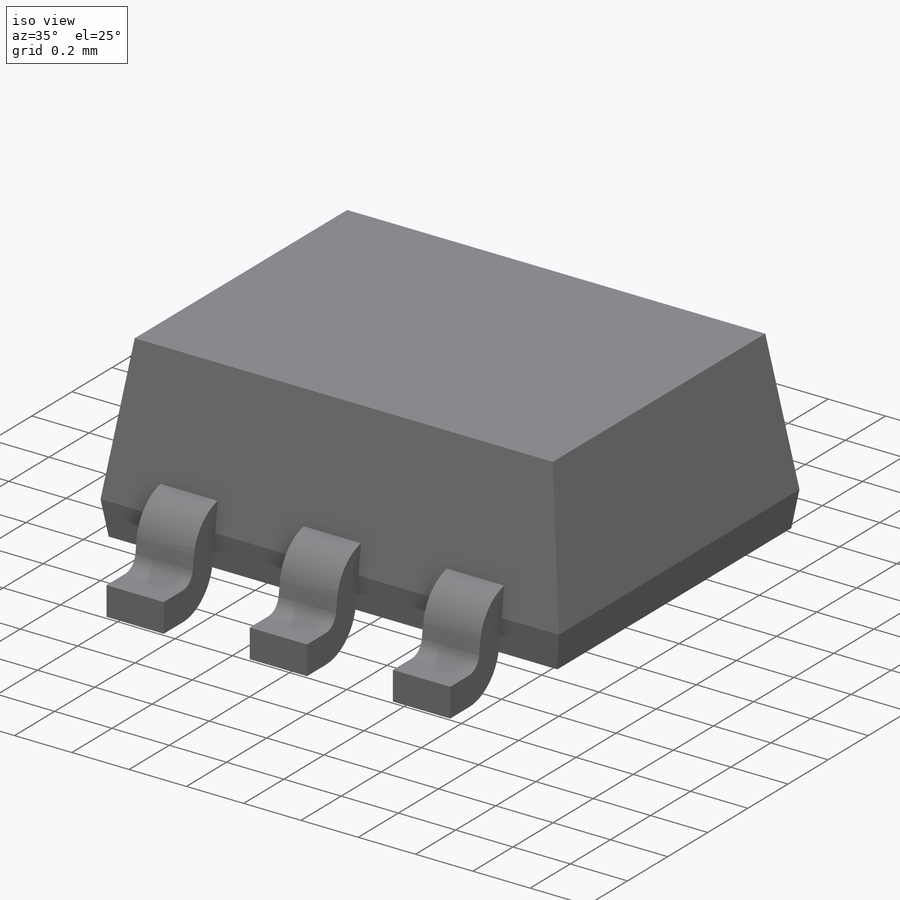
[diagram: iso view]
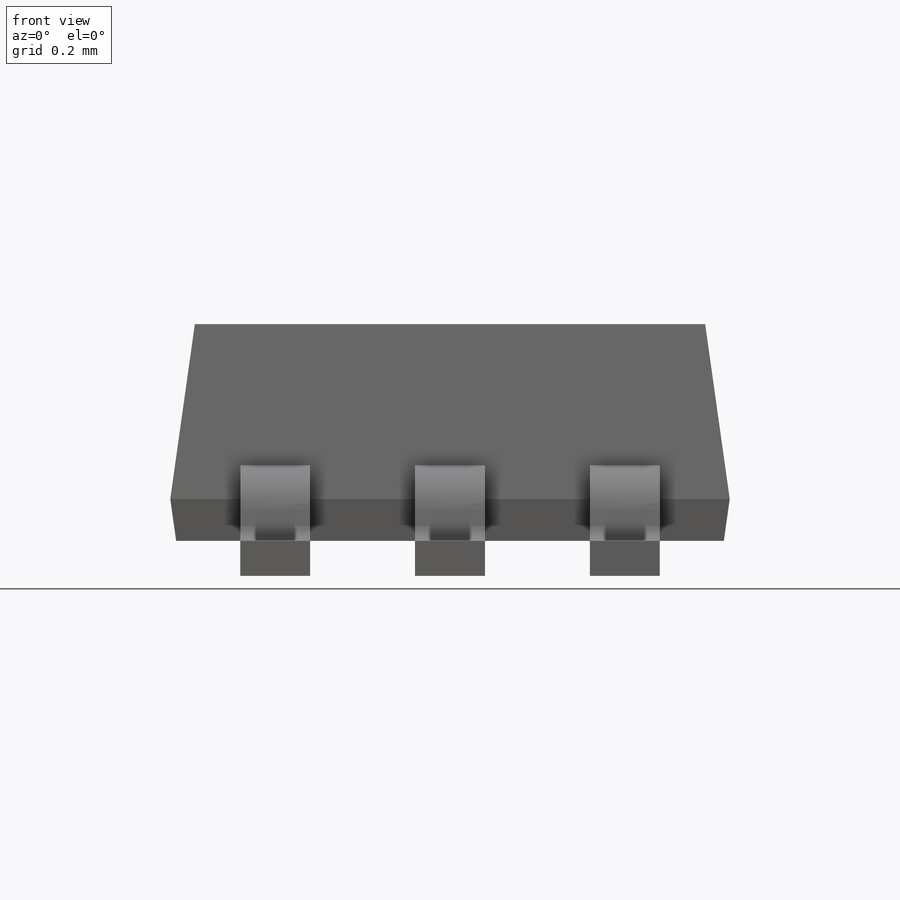
[diagram: front view]
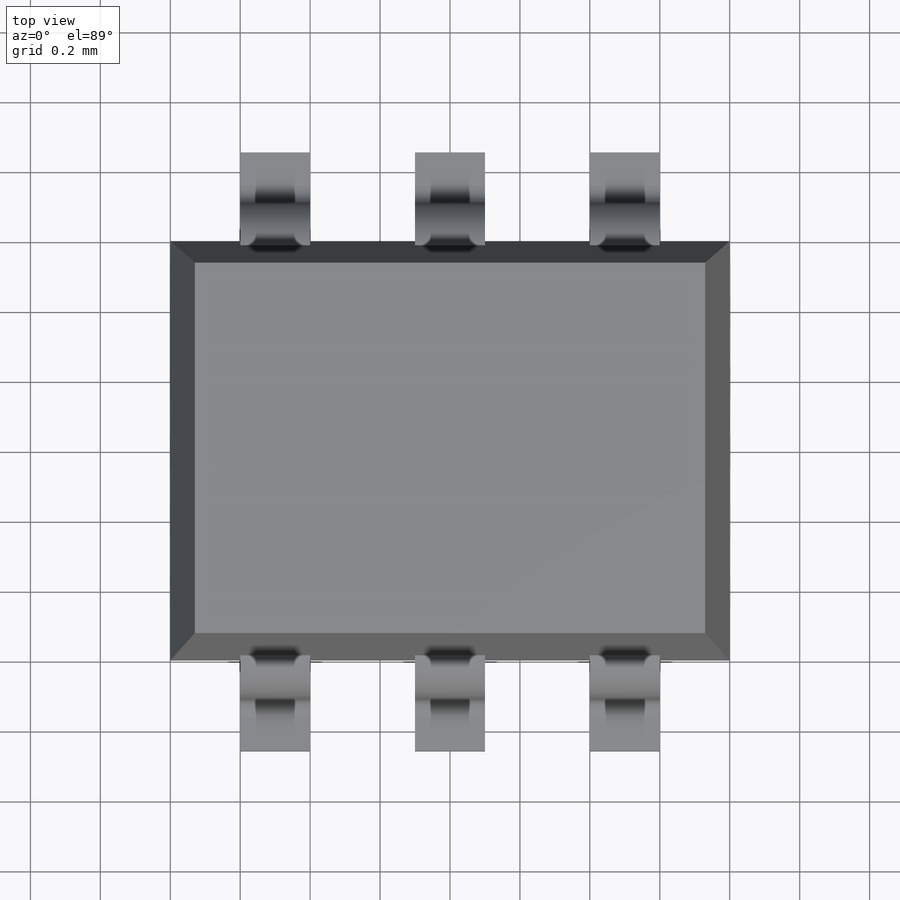
[diagram: top view]
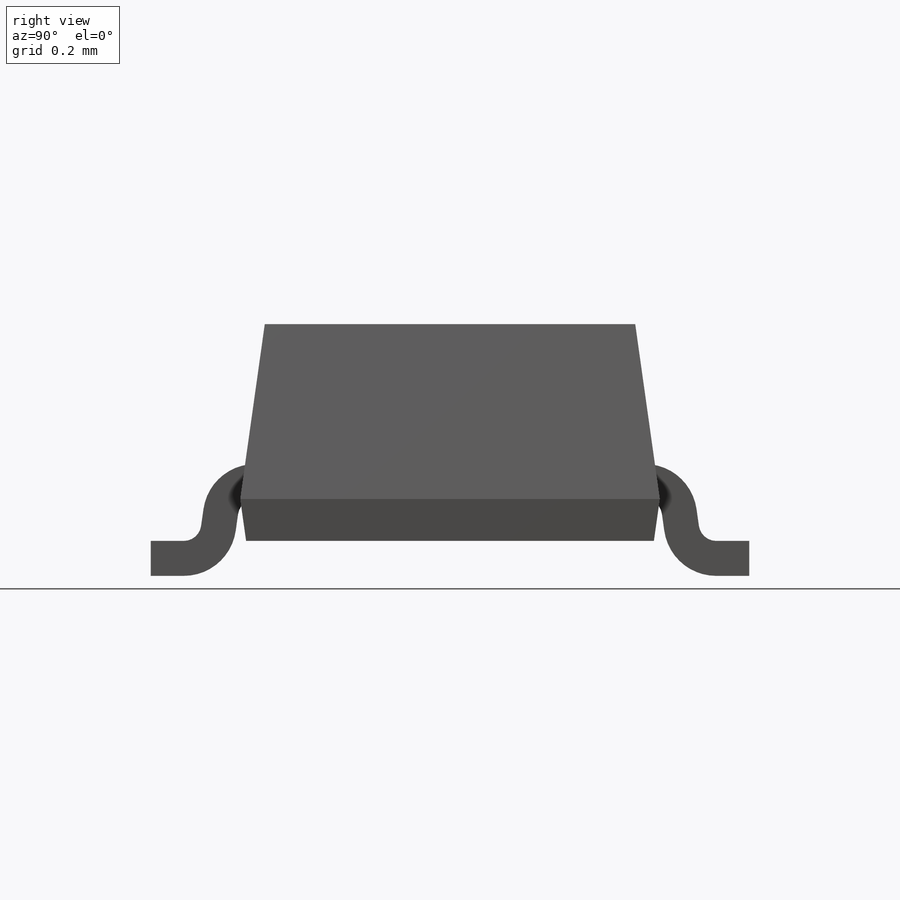
[diagram: right view]
SOLIDWORKS PART (.sldprt)
format: sldprt  version: not decoded by parser v0  size: 421,376 bytes
history: native  units: mm
features: sketch x16, pattern_linear x10, sheet_metal_op x8, mirror x6, plane x3, material x1, extrude x1 + 12 further entries (+13 scaffold rows collapsed; 6 parser-record rows omitted)
feature tree (76):
  scaffold x13  (default folders/planes/origin — collapsed)
  material  "Material <not specified>"
  sketch  "Sketch1"  dims[D1=1.6mm D2=1.2mm]
  extrude  "Boss-Extrude1"  Depth=0.5mm
  plane  "Plane1"
  plane  "Plane2"  Offset=0.95mm
  sketch  "Sketch2"  dims[c1.D1=0.1mm c1.D2=0.225mm c1.D3=0.11mm c1.D4=0.2mm c1.D5=0.2mm c1.D6=~1570.796327mm c2.D5=~0.598178mm c2.D4=~3.490659mm c2.D3=~139.62634mm c3.D4=0.2mm c3.D1=0.05mm c3.D2=0.5 c3.D3=0.0deg c3.D6=~28.64789deg]
  sheet_metal_op  "Base-Flange2"
  sheet_metal_op  "BaseBend4"
  pattern_linear  "LPattern1"  Count1=1 Spacing1=0.05mm Spacing2=1431.169987mm
  pattern_linear  "DerivedBend2"  Count1=2 Spacing1=0.05mm Spacing2=1431.169987mm
  pattern_linear  "DerivedBend3"  Count1=1 Spacing1=0.05mm Spacing2=1431.169987mm
  pattern_linear  "DerivedBend4"  Count1=2 Count2=2 Spacing1=0.05mm Spacing2=1431.169987mm
  plane  "Plane3"
  mirror  "Mirror1"
  pattern_linear  "DerivedBend5"  Count1=1 Spacing1=0.05mm Spacing2=1431.169987mm
  pattern_linear  "DerivedBend6"  Count1=2 Spacing1=0.05mm Spacing2=1431.169987mm
  pattern_linear  "DerivedBend7"  Count1=1 Spacing1=0.05mm Spacing2=1431.169987mm
  pattern_linear  "DerivedBend8"  Count1=2 Spacing1=0.05mm Spacing2=1431.169987mm
  pattern_linear  "DerivedBend9"  Count1=1 Spacing1=0.05mm Spacing2=1431.169987mm
  pattern_linear  "DerivedBend10"  Count1=2 Spacing1=0.05mm Spacing2=1431.169987mm
  sketch  "Bend-Lines3"
  sketch  "Bounding-Box3"
  sheet_metal_op  "Sheet-Metal3"
  "Flat-Pattern3"
  sketch  "Bend-Lines4"
  sketch  "Bounding-Box4"
  parser-record x6  (decoder bookkeeping rows leaked as tree rows — omitted from the tree; the rows remain in map.json)
  "Flatten-<BaseBend4>1"
  mirror  "Sheet-Metal6"
  sheet_metal_op  "Flat-Pattern6"
  sketch  "Bend-Lines5"
  sketch  "Bounding-Box5"
  "Flatten-<DerivedBend1>1"
  "Flatten-<DerivedBend2>1"
  mirror  "Sheet-Metal7"
  sheet_metal_op  "Flat-Pattern7"
  sketch  "Bend-Lines6"
  sketch  "Bounding-Box6"
  "Flatten-<DerivedBend3>1"
  "Flatten-<DerivedBend4>1"
  mirror  "Sheet-Metal8"
  sheet_metal_op  "Flat-Pattern8"
  sketch  "Bend-Lines7"
  sketch  "Bounding-Box7"
  "Flatten-<DerivedBend5>1"
  "Flatten-<DerivedBend6>1"
  mirror  "Sheet-Metal9"
  sheet_metal_op  "Flat-Pattern9"
  sketch  "Bend-Lines8"
  sketch  "Bounding-Box8"
  "Flatten-<DerivedBend7>1"
  "Flatten-<DerivedBend8>1"
  mirror  "Sheet-Metal10"
  sheet_metal_op  "Flat-Pattern10"
  sketch  "Bend-Lines9"
  sketch  "Bounding-Box9"
  "Flatten-<DerivedBend9>1"
  "Flatten-<DerivedBend10>1"
decode coverage: 13 of 41 modeling features carry decoded parameters; 12 rows unclassified (native names shown)
note: ~ marks probable driven/reference dimensions
note: suppression state not decoded; provenance and decode notes live in map.json
